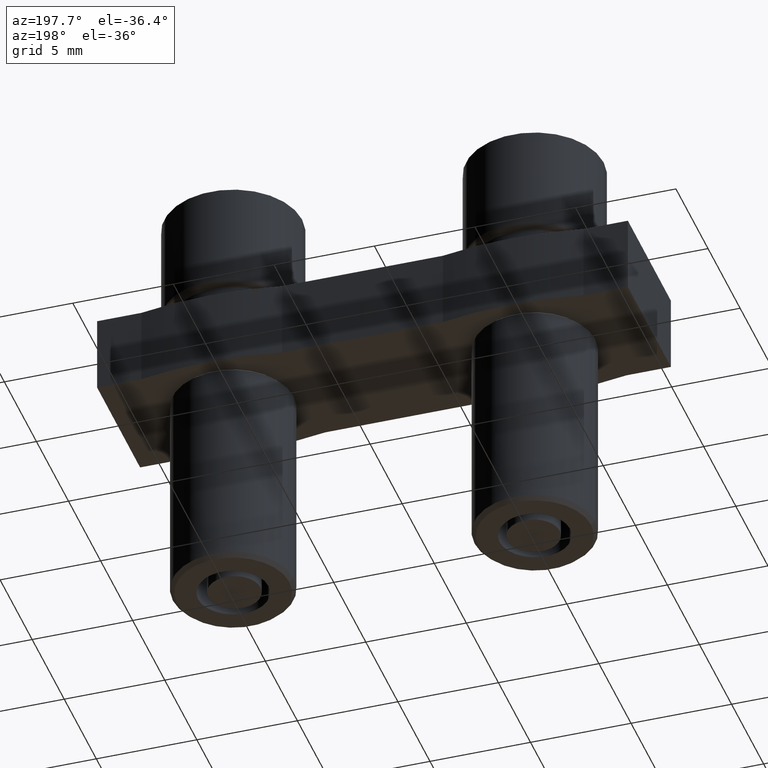
[diagram: clean part render]
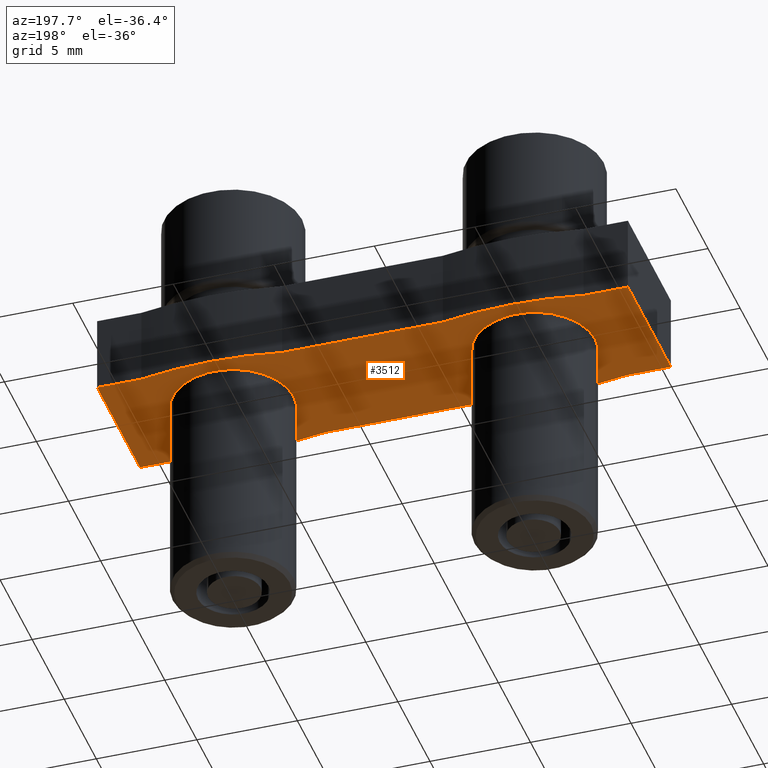
[diagram: same view with one face highlighted and labeled with its STEP entity id]
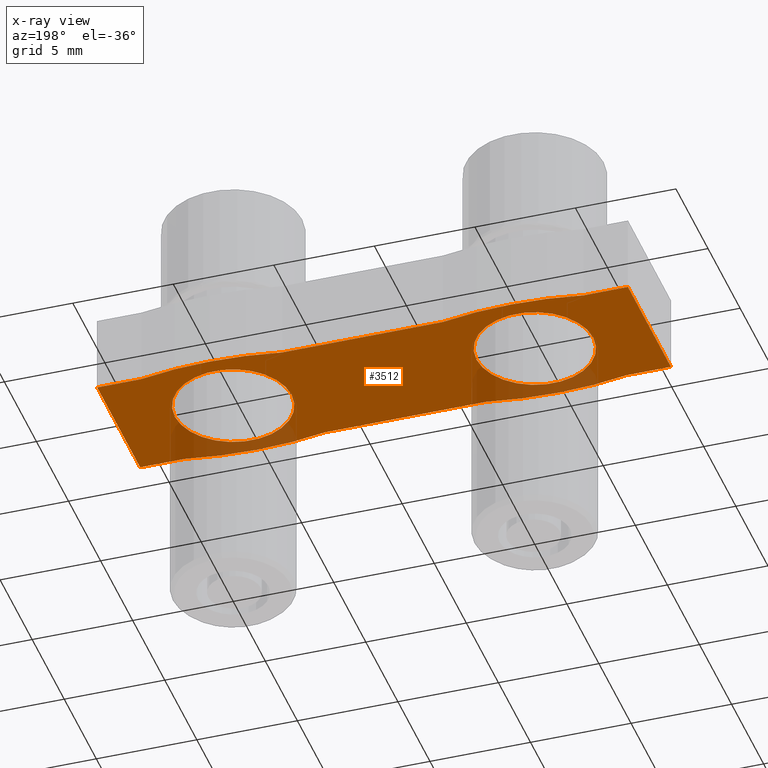
[diagram: x-ray of the same camera — body ghosted, the highlighted face saturated]
A machine part, auxiliary view. The second image highlights one B-rep face of the part: STEP entity #3512.
The next image is the same camera in x-ray: the body ghosted, the highlighted face saturated — about 13% of this face is hidden behind the body in this view.
In plain terms, the highlighted planar face has unit normal (0, 0, -1).
Its self-contained STEP definition (entity closure, byte-faithful):
#519 = FACE_OUTER_BOUND ( 'NONE', #1919, .T. ) ;
#528 = FACE_BOUND ( 'NONE', #1960, .T. ) ;
#542 = PLANE ( 'NONE',  #3131 ) ;
#544 = FACE_BOUND ( 'NONE', #1931, .T. ) ;
#545 = CARTESIAN_POINT ( 'NONE',  ( -62.85000000000001600, -3.349999999999927300, -4.800000000000001600 ) ) ;
#546 = DIRECTION ( 'NONE',  ( 0.0000000000000000000, 0.0000000000000000000, -1.000000000000000000 ) ) ;
#547 = DIRECTION ( 'NONE',  ( -1.000000000000000000, 0.0000000000000000000, -0.0000000000000000000 ) ) ;
#845 = CARTESIAN_POINT ( 'NONE',  ( 15.00000000000164800, -13.97500000000478700, -4.800000000000001600 ) ) ;
#846 = DIRECTION ( 'NONE',  ( 1.000000000000000000, 2.944367993170586300E-015, 0.0000000000000000000 ) ) ;
#861 = DIRECTION ( 'NONE',  ( -0.0000000000000000000, 0.0000000000000000000, -1.000000000000000000 ) ) ;
#936 = CARTESIAN_POINT ( 'NONE',  ( 1.734289795103002200E-015, 13.97500000000478900, -4.800000000000001600 ) ) ;
#943 = DIRECTION ( 'NONE',  ( -1.000000000000000000, 2.649931193853527400E-015, 0.0000000000000000000 ) ) ;
#947 = CARTESIAN_POINT ( 'NONE',  ( 5.128276275852789100E-015, -13.97500000000478900, -4.800000000000001600 ) ) ;
#951 = DIRECTION ( 'NONE',  ( -0.0000000000000000000, -0.0000000000000000000, 1.000000000000000000 ) ) ;
#961 = DIRECTION ( 'NONE',  ( -1.000000000000000000, 0.0000000000000000000, 0.0000000000000000000 ) ) ;
#965 = DIRECTION ( 'NONE',  ( -0.0000000000000000000, -0.0000000000000000000, 1.000000000000000000 ) ) ;
#1086 = LINE ( 'NONE', #1094, #2848 ) ;
#1087 = DIRECTION ( 'NONE',  ( -0.0000000000000000000, 0.0000000000000000000, -1.000000000000000000 ) ) ;
#1088 = DIRECTION ( 'NONE',  ( 1.000000000000000000, 2.491358183583712400E-016, 0.0000000000000000000 ) ) ;
#1089 = CARTESIAN_POINT ( 'NONE',  ( 15.00167760659078200, 1.868936589578456200E-015, -4.799999999982577300 ) ) ;
#1094 = CARTESIAN_POINT ( 'NONE',  ( 20.70000000000164800, 7.221084286606902900, -4.800000000000001600 ) ) ;
#1096 = LINE ( 'NONE', #1102, #2856 ) ;
#1097 = DIRECTION ( 'NONE',  ( -4.822322090079283200E-017, 1.000000000000000000, 0.0000000000000000000 ) ) ;
#1102 = CARTESIAN_POINT ( 'NONE',  ( -62.85000000000001600, 3.350000000000084500, -4.800000000000001600 ) ) ;
#1106 = DIRECTION ( 'NONE',  ( 1.000000000000000000, -0.0000000000000000000, 0.0000000000000000000 ) ) ;
#1148 = LINE ( 'NONE', #1150, #2899 ) ;
#1150 = CARTESIAN_POINT ( 'NONE',  ( -5.700000000000000200, 7.221084286606899400, -4.800000000000001600 ) ) ;
#1152 = DIRECTION ( 'NONE',  ( -2.009125974575783600E-016, 1.000000000000000000, 0.0000000000000000000 ) ) ;
#1163 = LINE ( 'NONE', #1167, #2891 ) ;
#1167 = CARTESIAN_POINT ( 'NONE',  ( 77.85000000000167100, -3.349999999999899300, -4.800000000000001600 ) ) ;
#1179 = DIRECTION ( 'NONE',  ( 1.000000000000000000, 2.491358183583711900E-016, 0.0000000000000000000 ) ) ;
#1186 = DIRECTION ( 'NONE',  ( -1.000000000000000000, 0.0000000000000000000, -0.0000000000000000000 ) ) ;
#1188 = DIRECTION ( 'NONE',  ( 1.000000000000000000, 2.491358183583712400E-016, 0.0000000000000000000 ) ) ;
#1189 = LINE ( 'NONE', #1193, #2915 ) ;
#1190 = DIRECTION ( 'NONE',  ( -0.0000000000000000000, 0.0000000000000000000, -1.000000000000000000 ) ) ;
#1191 = DIRECTION ( 'NONE',  ( 1.000000000000000000, 2.944367993170586000E-016, 0.0000000000000000000 ) ) ;
#1193 = CARTESIAN_POINT ( 'NONE',  ( -62.85000000000001600, -3.349999999999916600, -4.800000000000001600 ) ) ;
#1197 = CARTESIAN_POINT ( 'NONE',  ( 15.00167760659078200, 1.868936589578456200E-015, -4.799999999982577300 ) ) ;
#1206 = CARTESIAN_POINT ( 'NONE',  ( -62.85000000000001600, 3.350000000000089400, -4.800000000000001600 ) ) ;
#1209 = CARTESIAN_POINT ( 'NONE',  ( 15.00000000000164500, 13.97500000000479000, -4.800000000000001600 ) ) ;
#1220 = LINE ( 'NONE', #1206, #2930 ) ;
#1223 = DIRECTION ( 'NONE',  ( -0.0000000000000000000, 0.0000000000000000000, -1.000000000000000000 ) ) ;
#1226 = DIRECTION ( 'NONE',  ( 1.000000000000000000, -0.0000000000000000000, 0.0000000000000000000 ) ) ;
#1227 = DIRECTION ( 'NONE',  ( -1.000000000000000000, 0.0000000000000000000, 0.0000000000000000000 ) ) ;
#1232 = CARTESIAN_POINT ( 'NONE',  ( -0.001677606589130925800, 0.0000000000000000000, -4.799999999982577300 ) ) ;
#1233 = CARTESIAN_POINT ( 'NONE',  ( -0.001677606589130925800, 0.0000000000000000000, -4.799999999982577300 ) ) ;
#1243 = DIRECTION ( 'NONE',  ( -0.0000000000000000000, -0.0000000000000000000, 1.000000000000000000 ) ) ;
#1247 = CARTESIAN_POINT ( 'NONE',  ( 77.85000000000167100, 3.350000000000101800, -4.800000000000001600 ) ) ;
#1249 = DIRECTION ( 'NONE',  ( -0.0000000000000000000, -0.0000000000000000000, 1.000000000000000000 ) ) ;
#1250 = DIRECTION ( 'NONE',  ( -1.000000000000000000, 0.0000000000000000000, 0.0000000000000000000 ) ) ;
#1258 = LINE ( 'NONE', #1247, #2943 ) ;
#1261 = DIRECTION ( 'NONE',  ( -1.000000000000000000, -2.491358183583711900E-016, -0.0000000000000000000 ) ) ;
#1287 = DIRECTION ( 'NONE',  ( -1.000000000000000000, 0.0000000000000000000, -0.0000000000000000000 ) ) ;
#1307 = CARTESIAN_POINT ( 'NONE',  ( -62.85000000000001600, -3.349999999999918800, -4.800000000000001600 ) ) ;
#1315 = LINE ( 'NONE', #1307, #2984 ) ;
#1919 = EDGE_LOOP ( 'NONE', ( #2451, #2447, #2508, #2494, #2491, #2444, #2438, #2457, #2481, #2485, #2436, #2504 ) ) ;
#1931 = EDGE_LOOP ( 'NONE', ( #2459, #2467 ) ) ;
#1960 = EDGE_LOOP ( 'NONE', ( #2483, #2456 ) ) ;
#2032 = CARTESIAN_POINT ( 'NONE',  ( 18.50000000000170200, -3.350000000000084500, -4.800000000000001600 ) ) ;
#2037 = CARTESIAN_POINT ( 'NONE',  ( 11.50000000000156100, 3.350000000000081400, -4.800000000000001600 ) ) ;
#2056 = CARTESIAN_POINT ( 'NONE',  ( 17.90167760660178700, 2.591430462820474600E-015, -4.799999999982577300 ) ) ;
#2068 = CARTESIAN_POINT ( 'NONE',  ( 2.898322393421874000, 3.612708057521423400E-016, -4.799999999982577300 ) ) ;
#2071 = CARTESIAN_POINT ( 'NONE',  ( -3.500000000000049300, -3.350000000000086700, -4.800000000000001600 ) ) ;
#2074 = CARTESIAN_POINT ( 'NONE',  ( 11.49999999999991100, -3.349999999999942400, -4.800000000000001600 ) ) ;
#2075 = CARTESIAN_POINT ( 'NONE',  ( 12.10167760657977700, 7.727151196616457800E-016, -4.799999999982577300 ) ) ;
#2086 = CARTESIAN_POINT ( 'NONE',  ( -2.901677606600135700, 0.0000000000000000000, -4.799999999982577300 ) ) ;
#2090 = CARTESIAN_POINT ( 'NONE',  ( 20.70000000000164800, 3.350000000000087100, -4.800000000000001600 ) ) ;
#2091 = CARTESIAN_POINT ( 'NONE',  ( 20.70000000000164800, -3.349999999999913500, -4.800000000000001600 ) ) ;
#2092 = CARTESIAN_POINT ( 'NONE',  ( 18.50000000000174400, 3.350000000000084500, -4.800000000000001600 ) ) ;
#2098 = CARTESIAN_POINT ( 'NONE',  ( -5.699999999999996600, -3.349999999999916600, -4.800000000000001600 ) ) ;
#2134 = CARTESIAN_POINT ( 'NONE',  ( -5.699999999999996600, 3.350000000000084500, -4.800000000000001600 ) ) ;
#2138 = CARTESIAN_POINT ( 'NONE',  ( 3.500000000000087900, 3.350000000000080500, -4.800000000000001600 ) ) ;
#2148 = CARTESIAN_POINT ( 'NONE',  ( 3.500000000001739900, -3.349999999999943200, -4.800000000000001600 ) ) ;
#2152 = CARTESIAN_POINT ( 'NONE',  ( -3.500000000000093700, 3.350000000000082200, -4.800000000000001600 ) ) ;
#2181 = VERTEX_POINT ( 'NONE', #2091 ) ;
#2187 = VERTEX_POINT ( 'NONE', #2056 ) ;
#2188 = VERTEX_POINT ( 'NONE', #2075 ) ;
#2196 = VERTEX_POINT ( 'NONE', #2037 ) ;
#2205 = VERTEX_POINT ( 'NONE', #2090 ) ;
#2210 = VERTEX_POINT ( 'NONE', #2071 ) ;
#2212 = VERTEX_POINT ( 'NONE', #2086 ) ;
#2218 = VERTEX_POINT ( 'NONE', #2032 ) ;
#2220 = VERTEX_POINT ( 'NONE', #2068 ) ;
#2223 = VERTEX_POINT ( 'NONE', #2074 ) ;
#2232 = VERTEX_POINT ( 'NONE', #2138 ) ;
#2235 = VERTEX_POINT ( 'NONE', #2092 ) ;
#2241 = VERTEX_POINT ( 'NONE', #2134 ) ;
#2254 = VERTEX_POINT ( 'NONE', #2148 ) ;
#2278 = VERTEX_POINT ( 'NONE', #2098 ) ;
#2301 = VERTEX_POINT ( 'NONE', #2152 ) ;
#2436 = ORIENTED_EDGE ( 'NONE', *, *, #3276, .T. ) ;
#2438 = ORIENTED_EDGE ( 'NONE', *, *, #3339, .T. ) ;
#2444 = ORIENTED_EDGE ( 'NONE', *, *, #3313, .T. ) ;
#2447 = ORIENTED_EDGE ( 'NONE', *, *, #3215, .T. ) ;
#2451 = ORIENTED_EDGE ( 'NONE', *, *, #3312, .T. ) ;
#2456 = ORIENTED_EDGE ( 'NONE', *, *, #3311, .F. ) ;
#2457 = ORIENTED_EDGE ( 'NONE', *, *, #3231, .F. ) ;
#2459 = ORIENTED_EDGE ( 'NONE', *, *, #3322, .T. ) ;
#2467 = ORIENTED_EDGE ( 'NONE', *, *, #3316, .T. ) ;
#2481 = ORIENTED_EDGE ( 'NONE', *, *, #3309, .T. ) ;
#2483 = ORIENTED_EDGE ( 'NONE', *, *, #3274, .F. ) ;
#2485 = ORIENTED_EDGE ( 'NONE', *, *, #3296, .T. ) ;
#2491 = ORIENTED_EDGE ( 'NONE', *, *, #3300, .F. ) ;
#2494 = ORIENTED_EDGE ( 'NONE', *, *, #3275, .F. ) ;
#2504 = ORIENTED_EDGE ( 'NONE', *, *, #3230, .F. ) ;
#2508 = ORIENTED_EDGE ( 'NONE', *, *, #3324, .F. ) ;
#2772 = CIRCLE ( 'NONE', #2787, 17.67500000000479000 ) ;
#2787 = AXIS2_PLACEMENT_3D ( 'NONE', #947, #965, #943 ) ;
#2788 = CIRCLE ( 'NONE', #2790, 17.67500000000478600 ) ;
#2790 = AXIS2_PLACEMENT_3D ( 'NONE', #936, #951, #961 ) ;
#2800 = AXIS2_PLACEMENT_3D ( 'NONE', #845, #861, #846 ) ;
#2803 = CIRCLE ( 'NONE', #2800, 17.67500000000479000 ) ;
#2837 = CIRCLE ( 'NONE', #2842, 2.900000000011004900 ) ;
#2842 = AXIS2_PLACEMENT_3D ( 'NONE', #1089, #1087, #1088 ) ;
#2848 = VECTOR ( 'NONE', #1097, 1000.000000000000000 ) ;
#2856 = VECTOR ( 'NONE', #1106, 1000.000000000000000 ) ;
#2891 = VECTOR ( 'NONE', #1179, 1000.000000000000000 ) ;
#2894 = CIRCLE ( 'NONE', #2929, 2.900000000011004900 ) ;
#2897 = CIRCLE ( 'NONE', #2910, 17.67500000000479000 ) ;
#2899 = VECTOR ( 'NONE', #1152, 1000.000000000000000 ) ;
#2900 = CIRCLE ( 'NONE', #2931, 2.900000000011004900 ) ;
#2910 = AXIS2_PLACEMENT_3D ( 'NONE', #1209, #1190, #1191 ) ;
#2915 = VECTOR ( 'NONE', #1186, 1000.000000000000000 ) ;
#2929 = AXIS2_PLACEMENT_3D ( 'NONE', #1197, #1223, #1188 ) ;
#2930 = VECTOR ( 'NONE', #1226, 1000.000000000000000 ) ;
#2931 = AXIS2_PLACEMENT_3D ( 'NONE', #1232, #1249, #1250 ) ;
#2943 = VECTOR ( 'NONE', #1261, 1000.000000000000000 ) ;
#2957 = CIRCLE ( 'NONE', #2990, 2.900000000011004900 ) ;
#2984 = VECTOR ( 'NONE', #1287, 1000.000000000000000 ) ;
#2990 = AXIS2_PLACEMENT_3D ( 'NONE', #1233, #1243, #1227 ) ;
#3131 = AXIS2_PLACEMENT_3D ( 'NONE', #545, #546, #547 ) ;
#3215 = EDGE_CURVE ( 'NONE', #2196, #2235, #2803, .T. ) ;
#3230 = EDGE_CURVE ( 'NONE', #2232, #2301, #2772, .T. ) ;
#3231 = EDGE_CURVE ( 'NONE', #2210, #2254, #2788, .T. ) ;
#3274 = EDGE_CURVE ( 'NONE', #2187, #2188, #2837, .T. ) ;
#3275 = EDGE_CURVE ( 'NONE', #2181, #2205, #1086, .T. ) ;
#3276 = EDGE_CURVE ( 'NONE', #2241, #2301, #1096, .T. ) ;
#3296 = EDGE_CURVE ( 'NONE', #2278, #2241, #1148, .T. ) ;
#3300 = EDGE_CURVE ( 'NONE', #2218, #2181, #1163, .T. ) ;
#3309 = EDGE_CURVE ( 'NONE', #2210, #2278, #1189, .T. ) ;
#3311 = EDGE_CURVE ( 'NONE', #2188, #2187, #2894, .T. ) ;
#3312 = EDGE_CURVE ( 'NONE', #2232, #2196, #1220, .T. ) ;
#3313 = EDGE_CURVE ( 'NONE', #2218, #2223, #2897, .T. ) ;
#3316 = EDGE_CURVE ( 'NONE', #2220, #2212, #2900, .T. ) ;
#3322 = EDGE_CURVE ( 'NONE', #2212, #2220, #2957, .T. ) ;
#3324 = EDGE_CURVE ( 'NONE', #2205, #2235, #1258, .T. ) ;
#3339 = EDGE_CURVE ( 'NONE', #2223, #2254, #1315, .T. ) ;
#3512 = ADVANCED_FACE ( 'NONE', ( #544, #519, #528 ), #542, .T. ) ;